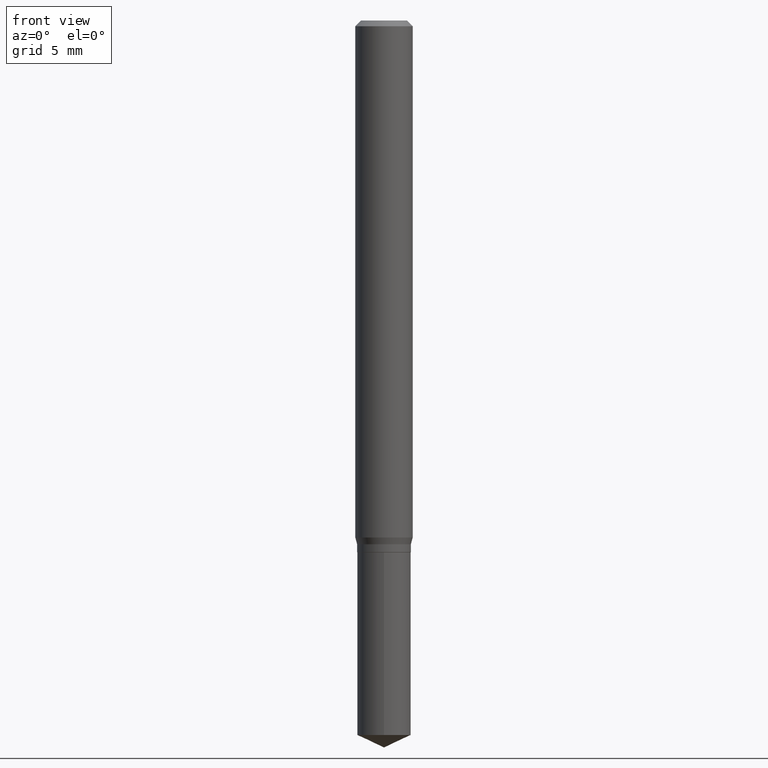
[diagram: clean part render]
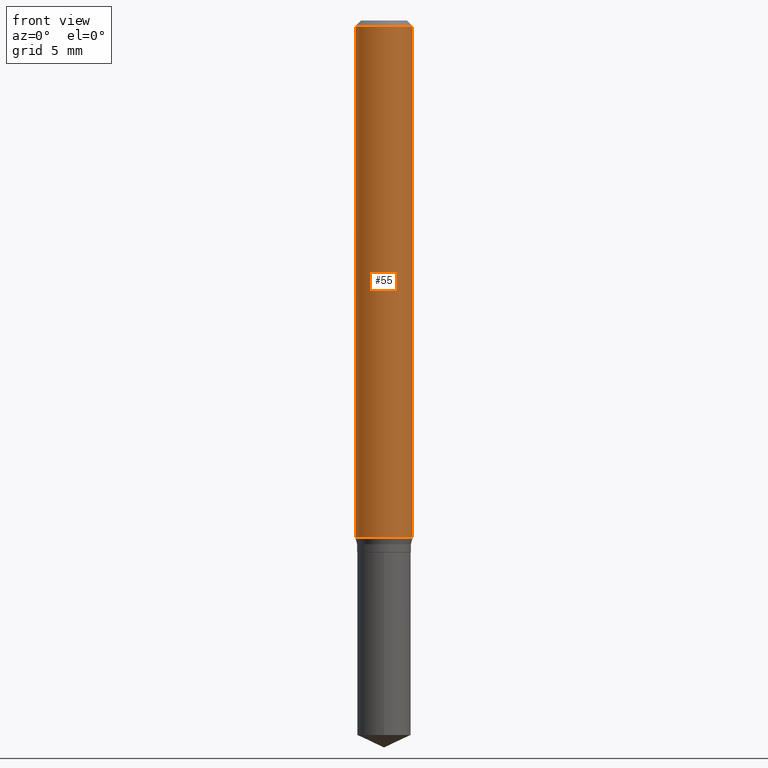
[diagram: same view with one face highlighted and labeled with its STEP entity id]
A machine part, front view. The second image highlights one B-rep face of the part: STEP entity #55.
In plain terms, the highlighted cylindrical surface (edge-blend (fillet) strip) has radius 1.4999 mm, axis along (-0, 0, 1).
Its self-contained STEP definition (entity closure, byte-faithful):
#19 = CARTESIAN_POINT ( 'NONE',  ( 0.05905000000000013016, -4.126947734692995206E-15, -1.063904809471616364 ) ) ;
#30 = LINE ( 'NONE', #393, #42 ) ;
#42 = VECTOR ( 'NONE', #333, 39.37007874015748143 ) ;
#43 = AXIS2_PLACEMENT_3D ( 'NONE', #448, #217, #360 ) ;
#55 = ADVANCED_FACE ( 'NONE', ( #227 ), #194, .T. ) ;
#64 = DIRECTION ( 'NONE',  ( -2.445468806185136877E-29, 3.491481338843145188E-15, 1.000000000000000000 ) ) ;
#85 = AXIS2_PLACEMENT_3D ( 'NONE', #160, #116, #304 ) ;
#87 = CARTESIAN_POINT ( 'NONE',  ( -0.05905000000000013016, -3.295028303109280398E-15, -1.063904809471616364 ) ) ;
#88 = EDGE_LOOP ( 'NONE', ( #402, #178, #132, #103 ) ) ;
#95 = DIRECTION ( 'NONE',  ( 1.000000000000000000, -6.982962677686266711E-15, 0.000000000000000000 ) ) ;
#103 = ORIENTED_EDGE ( 'NONE', *, *, #416, .F. ) ;
#110 = VERTEX_POINT ( 'NONE', #169 ) ;
#116 = DIRECTION ( 'NONE',  ( -2.445468806185136597E-29, 3.491481338843145583E-15, 1.000000000000000000 ) ) ;
#132 = ORIENTED_EDGE ( 'NONE', *, *, #479, .T. ) ;
#160 = CARTESIAN_POINT ( 'NONE',  ( 2.601746024313178351E-29, -3.714603788575621075E-15, -1.063904809471616364 ) ) ;
#169 = CARTESIAN_POINT ( 'NONE',  ( -0.05904999999999999832, -1.458343606127338923E-15, -0.01181000000000007218 ) ) ;
#173 = DIRECTION ( 'NONE',  ( -2.445468806185136597E-29, 3.491481338843145583E-15, 1.000000000000000000 ) ) ;
#178 = ORIENTED_EDGE ( 'NONE', *, *, #364, .T. ) ;
#193 = EDGE_CURVE ( 'NONE', #262, #110, #291, .T. ) ;
#194 = CYLINDRICAL_SURFACE ( 'NONE', #43, 0.05905000000000006771 ) ;
#217 = DIRECTION ( 'NONE',  ( -2.445468806185136597E-29, 3.491481338843145583E-15, 1.000000000000000000 ) ) ;
#227 = FACE_OUTER_BOUND ( 'NONE', #88, .T. ) ;
#250 = CIRCLE ( 'NONE', #348, 0.05904999999999999832 ) ;
#252 = CARTESIAN_POINT ( 'NONE',  ( -0.05905000000000006771, 4.195754854663396409E-16, -2.904631170795525045E-30 ) ) ;
#262 = VERTEX_POINT ( 'NONE', #87 ) ;
#291 = LINE ( 'NONE', #252, #415 ) ;
#304 = DIRECTION ( 'NONE',  ( 1.000000000000000000, -6.982962677686265133E-15, 0.000000000000000000 ) ) ;
#333 = DIRECTION ( 'NONE',  ( -2.445468806185136877E-29, 3.491481338843145188E-15, 1.000000000000000000 ) ) ;
#348 = AXIS2_PLACEMENT_3D ( 'NONE', #380, #173, #95 ) ;
#360 = DIRECTION ( 'NONE',  ( 1.000000000000000000, -6.982962677686266711E-15, 4.876176775795936353E-29 ) ) ;
#364 = EDGE_CURVE ( 'NONE', #262, #440, #410, .T. ) ;
#380 = CARTESIAN_POINT ( 'NONE',  ( 2.888098660104664204E-31, -4.123439461173780263E-17, -0.01181000000000007218 ) ) ;
#393 = CARTESIAN_POINT ( 'NONE',  ( 0.05905000000000006771, -4.123439461173745257E-16, 2.879382386107503723E-30 ) ) ;
#402 = ORIENTED_EDGE ( 'NONE', *, *, #193, .F. ) ;
#410 = CIRCLE ( 'NONE', #85, 0.05905000000000013016 ) ;
#415 = VECTOR ( 'NONE', #64, 39.37007874015748143 ) ;
#416 = EDGE_CURVE ( 'NONE', #110, #458, #250, .T. ) ;
#440 = VERTEX_POINT ( 'NONE', #19 ) ;
#448 = CARTESIAN_POINT ( 'NONE',  ( 0.000000000000000000, 0.000000000000000000, 0.000000000000000000 ) ) ;
#458 = VERTEX_POINT ( 'NONE', #473 ) ;
#473 = CARTESIAN_POINT ( 'NONE',  ( 0.05904999999999999832, -4.535783407291118600E-16, -0.01181000000000007218 ) ) ;
#479 = EDGE_CURVE ( 'NONE', #440, #458, #30, .T. ) ;